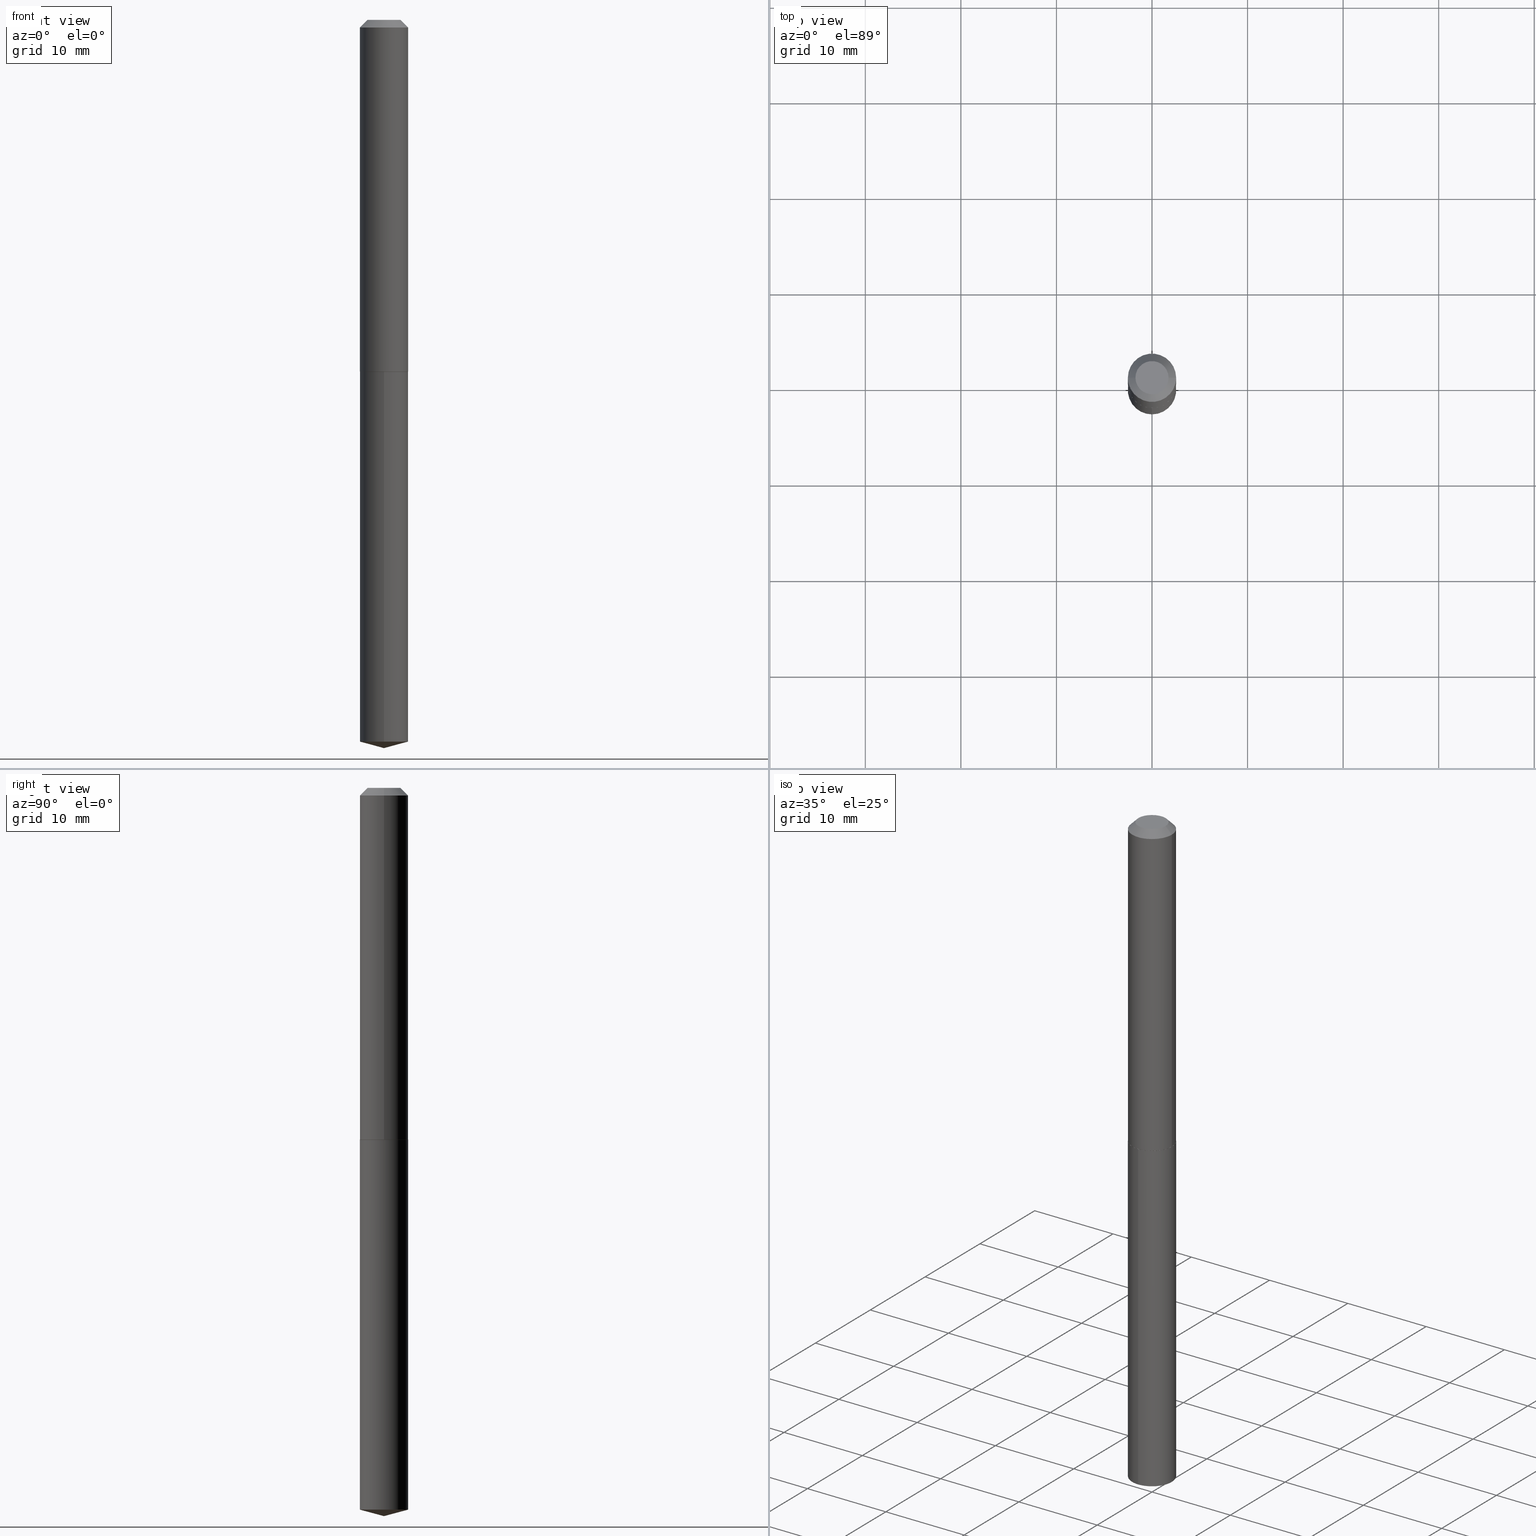
[diagram: canonical four-view strip — front | top / right | iso, engineering-drawing reading convention]
A machine part, canonical four-view strip (front | top / right | iso — engineering-drawing reading convention). The complete STEP part file that produces these views, byte-faithful:
ISO-10303-21;
HEADER;
FILE_DESCRIPTION (( 'STEP AP203' ),
    '1' );
FILE_NAME ('53008.STEP',
    '2024-04-22T18:51:53',
    ( '' ),
    ( '' ),
    'SwSTEP 2.0',
    'SolidWorks 2023',
    '' );
FILE_SCHEMA (( 'CONFIG_CONTROL_DESIGN' ));
ENDSEC;

DATA;
#1 = ORIENTED_EDGE ( 'NONE', *, *, #56, .T. ) ;
#2 = VECTOR ( 'NONE', #383, 39.37007874015748143 ) ;
#3 = PERSON_AND_ORGANIZATION ( #318, #333 ) ;
#4 = ORIENTED_EDGE ( 'NONE', *, *, #56, .F. ) ;
#5 =( NAMED_UNIT ( * ) SI_UNIT ( $, .STERADIAN. ) SOLID_ANGLE_UNIT ( ) );
#6 = VERTEX_POINT ( 'NONE', #172 ) ;
#7 = CARTESIAN_POINT ( 'NONE',  ( 0.000000000000000000, 0.000000000000000000, 0.000000000000000000 ) ) ;
#8 = ORIENTED_EDGE ( 'NONE', *, *, #20, .F. ) ;
#9 = CIRCLE ( 'NONE', #22, 0.06825000000000000511 ) ;
#10 = PERSON_AND_ORGANIZATION_ROLE ( 'design_owner' ) ;
#11 = ORIENTED_EDGE ( 'NONE', *, *, #222, .T. ) ;
#12 = DIRECTION ( 'NONE',  ( 1.000000000000000000, -6.982962677686266711E-15, 0.000000000000000000 ) ) ;
#13 = CARTESIAN_POINT ( 'NONE',  ( 7.252523040957394308E-29, -1.040811562187627569E-14, -2.973339055353103610 ) ) ;
#14 = DATE_AND_TIME ( #342, #339 ) ;
#15 = AXIS2_PLACEMENT_3D ( 'NONE', #315, #138, #380 ) ;
#16 = CARTESIAN_POINT ( 'NONE',  ( -0.09950000000000017164, -4.350420697232997080E-15, -1.448500000000000343 ) ) ;
#17 = CC_DESIGN_APPROVAL ( #66, ( #288 ) ) ;
#18 = CARTESIAN_POINT ( 'NONE',  ( 2.994835545909338206E-48, -4.275831445896990567E-34, -1.224646799147357958E-19 ) ) ;
#19 = DIRECTION ( 'NONE',  ( -2.433211120432753705E-29, 3.509035042504704003E-15, 1.000000000000000000 ) ) ;
#20 = EDGE_CURVE ( 'NONE', #152, #95, #140, .T. ) ;
#21 = DIRECTION ( 'NONE',  ( -2.445468806185136597E-29, 3.491481338843145583E-15, 1.000000000000000000 ) ) ;
#22 = AXIS2_PLACEMENT_3D ( 'NONE', #71, #193, #131 ) ;
#23 = DIRECTION ( 'NONE',  ( -1.000000000000000000, 6.982962677686266711E-15, 0.000000000000000000 ) ) ;
#24 = DIRECTION ( 'NONE',  ( 1.000000000000000000, -6.982962677686266711E-15, 4.876176775795936353E-29 ) ) ;
#25 = ADVANCED_FACE ( 'NONE', ( #253 ), #200, .T. ) ;
#26 = FACE_OUTER_BOUND ( 'NONE', #270, .T. ) ;
#27 = AXIS2_PLACEMENT_3D ( 'NONE', #75, #350, #12 ) ;
#28 = EDGE_CURVE ( 'NONE', #331, #152, #344, .T. ) ;
#29 = CC_DESIGN_SECURITY_CLASSIFICATION ( #314, ( #373 ) ) ;
#30 = CARTESIAN_POINT ( 'NONE',  ( 3.543484300162263808E-29, -5.059156459983719291E-15, -1.449000000000000288 ) ) ;
#31 = CARTESIAN_POINT ( 'NONE',  ( 7.642090019328598283E-31, -1.091087918388489651E-16, -0.03125000000000019429 ) ) ;
#32 = ORIENTED_EDGE ( 'NONE', *, *, #85, .T. ) ;
#33 = AXIS2_PLACEMENT_3D ( 'NONE', #13, #42, #377 ) ;
#34 = DIRECTION ( 'NONE',  ( 1.000000000000000000, -6.982962677686268288E-15, 0.000000000000000000 ) ) ;
#35 = EDGE_LOOP ( 'NONE', ( #278, #265, #217, #129 ) ) ;
#36 =( NAMED_UNIT ( * ) PLANE_ANGLE_UNIT ( ) SI_UNIT ( $, .RADIAN. ) );
#37 = EDGE_LOOP ( 'NONE', ( #212, #308, #337, #62 ) ) ;
#38 = ORIENTED_EDGE ( 'NONE', *, *, #50, .T. ) ;
#39 = CONICAL_SURFACE ( 'NONE', #250, 146.9311341562559505, 1.308996938995748760 ) ;
#40 = APPLICATION_CONTEXT ( 'configuration controlled 3d designs of mechanical parts and assemblies' ) ;
#41 = CARTESIAN_POINT ( 'NONE',  ( -0.09950000000000000511, -1.876269733495272342E-15, -0.03125000000000019429 ) ) ;
#42 = DIRECTION ( 'NONE',  ( -2.433211120432753705E-29, 3.509035042504704003E-15, 1.000000000000000000 ) ) ;
#43 = PERSON_AND_ORGANIZATION ( #318, #333 ) ;
#44 = CARTESIAN_POINT ( 'NONE',  ( 7.069900220813351214E-16, 0.09949999999999496747, -1.449000000000000510 ) ) ;
#45 = APPLICATION_CONTEXT ( 'configuration controlled 3d designs of mechanical parts and assemblies' ) ;
#46 = CIRCLE ( 'NONE', #285, 0.09900000000000022671 ) ;
#47 = DIRECTION ( 'NONE',  ( -0.7071067811865837660, 7.493145998870485111E-15, 0.7071067811865112684 ) ) ;
#48 = PERSON_AND_ORGANIZATION_ROLE ( 'creator' ) ;
#49 = DIRECTION ( 'NONE',  ( -2.445468806185136877E-29, 3.491481338843145188E-15, 1.000000000000000000 ) ) ;
#50 = EDGE_CURVE ( 'NONE', #183, #272, #354, .T. ) ;
#51 = FACE_OUTER_BOUND ( 'NONE', #334, .T. ) ;
#52 = FACE_OUTER_BOUND ( 'NONE', #35, .T. ) ;
#53 = AXIS2_PLACEMENT_3D ( 'NONE', #357, #385, #202 ) ;
#54 = DIRECTION ( 'NONE',  ( -6.982962677686266711E-15, -1.000000000000000000, 2.745575873029409572E-15 ) ) ;
#55 = CARTESIAN_POINT ( 'NONE',  ( -6.948047864297481652E-16, -0.09950000000000505662, -1.449000000000000066 ) ) ;
#56 = EDGE_CURVE ( 'NONE', #122, #89, #266, .T. ) ;
#57 = FACE_OUTER_BOUND ( 'NONE', #119, .T. ) ;
#58 = VECTOR ( 'NONE', #249, 39.37007874015748143 ) ;
#59 = PERSON_AND_ORGANIZATION ( #318, #333 ) ;
#60 = APPLICATION_PROTOCOL_DEFINITION ( 'international standard', 'config_control_design', 1994, #45 ) ;
#61 = EDGE_LOOP ( 'NONE', ( #302, #216, #359, #91 ) ) ;
#62 = ORIENTED_EDGE ( 'NONE', *, *, #375, .F. ) ;
#63 = DIRECTION ( 'NONE',  ( -2.445468806185136597E-29, 3.491481338843145583E-15, 1.000000000000000000 ) ) ;
#64 = VERTEX_POINT ( 'NONE', #283 ) ;
#65 = ORIENTED_EDGE ( 'NONE', *, *, #220, .T. ) ;
#66 = APPROVAL ( #88, 'UNSPECIFIED' ) ;
#67 = ORIENTED_EDGE ( 'NONE', *, *, #366, .T. ) ;
#68 = CONICAL_SURFACE ( 'NONE', #147, 0.09950000000000000511, 0.7853981633974452814 ) ;
#69 = VERTEX_POINT ( 'NONE', #228 ) ;
#70 = PERSON_AND_ORGANIZATION ( #318, #333 ) ;
#71 = CARTESIAN_POINT ( 'NONE',  ( 2.994835545909338206E-48, -4.275831445896990567E-34, -1.224646799147357958E-19 ) ) ;
#72 = SHAPE_DEFINITION_REPRESENTATION ( #121, #103 ) ;
#73 = PLANE ( 'NONE',  #15 ) ;
#74 = PERSON_AND_ORGANIZATION ( #318, #333 ) ;
#75 = CARTESIAN_POINT ( 'NONE',  ( 3.542261565759171006E-29, -5.057410719314297787E-15, -1.448500000000000343 ) ) ;
#76 = CARTESIAN_POINT ( 'NONE',  ( 7.335467627399330870E-29, -1.047623449430291696E-14, -3.000000000000000444 ) ) ;
#77 = DIRECTION ( 'NONE',  ( 6.982962677686265922E-15, 1.000000000000000000, -3.509035042504704003E-15 ) ) ;
#78 = CLOSED_SHELL ( 'NONE', ( #343, #378, #92, #273, #319, #271, #299, #109 ) ) ;
#79 = LINE ( 'NONE', #82, #135 ) ;
#80 = AXIS2_PLACEMENT_3D ( 'NONE', #18, #348, #142 ) ;
#81 = PRODUCT_RELATED_PRODUCT_CATEGORY ( 'detail', '', ( #374 ) ) ;
#82 = CARTESIAN_POINT ( 'NONE',  ( 0.09950000000000017164, -5.752215505744083029E-15, -1.448500000000000343 ) ) ;
#83 = DIRECTION ( 'NONE',  ( -2.433211120432753705E-29, 3.509035042504704003E-15, 1.000000000000000000 ) ) ;
#84 = DIRECTION ( 'NONE',  ( 1.000000000000000000, -6.982962677686266711E-15, 0.000000000000000000 ) ) ;
#85 = EDGE_CURVE ( 'NONE', #305, #6, #178, .T. ) ;
#86 = VECTOR ( 'NONE', #322, 39.37007874015748143 ) ;
#87 = CC_DESIGN_PERSON_AND_ORGANIZATION_ASSIGNMENT ( #59, #181, ( #288 ) ) ;
#88 = APPROVAL_STATUS ( 'not_yet_approved' ) ;
#89 = VERTEX_POINT ( 'NONE', #226 ) ;
#90 = CARTESIAN_POINT ( 'NONE',  ( 3.542261565759171006E-29, -5.057410719314297787E-15, -1.448500000000000343 ) ) ;
#91 = ORIENTED_EDGE ( 'NONE', *, *, #220, .F. ) ;
#92 = ADVANCED_FACE ( 'NONE', ( #133 ), #186, .T. ) ;
#93 = ORIENTED_EDGE ( 'NONE', *, *, #205, .F. ) ;
#94 = EDGE_CURVE ( 'NONE', #89, #122, #355, .T. ) ;
#95 = VERTEX_POINT ( 'NONE', #41 ) ;
#96 = ORIENTED_EDGE ( 'NONE', *, *, #113, .F. ) ;
#97 = CARTESIAN_POINT ( 'NONE',  ( 0.09950000000000000511, -7.917283426171163128E-16, -0.03125000000000019429 ) ) ;
#98 = CC_DESIGN_PERSON_AND_ORGANIZATION_ASSIGNMENT ( #252, #369, ( #314 ) ) ;
#99 = EDGE_LOOP ( 'NONE', ( #336, #38 ) ) ;
#100 = APPROVAL_ROLE ( '' ) ;
#101 = DIRECTION ( 'NONE',  ( -2.433211120432753705E-29, 3.509035042504704003E-15, 1.000000000000000000 ) ) ;
#102 = ORIENTED_EDGE ( 'NONE', *, *, #94, .F. ) ;
#103 = ADVANCED_BREP_SHAPE_REPRESENTATION ( '53008', ( #145, #269, #164 ), #251 ) ;
#104 = CIRCLE ( 'NONE', #244, 0.09950000000000017164 ) ;
#105 = CC_DESIGN_PERSON_AND_ORGANIZATION_ASSIGNMENT ( #192, #48, ( #373 ) ) ;
#106 = DIRECTION ( 'NONE',  ( -6.982962677686266711E-15, -1.000000000000000000, 2.745575873029409967E-15 ) ) ;
#107 = DIRECTION ( 'NONE',  ( 6.863315791527694259E-15, 0.9659258262890696445, 0.2588190451025158545 ) ) ;
#108 = CYLINDRICAL_SURFACE ( 'NONE', #261, 0.09950000000000001898 ) ;
#109 = ADVANCED_FACE ( 'NONE', ( #221 ), #73, .F. ) ;
#110 = CARTESIAN_POINT ( 'NONE',  ( 0.06825000000000000511, -6.299786654825117791E-16, -1.224646799108672044E-19 ) ) ;
#111 = AXIS2_PLACEMENT_3D ( 'NONE', #195, #166, #189 ) ;
#112 = CARTESIAN_POINT ( 'NONE',  ( -6.948047864297482638E-16, -0.09950000000000508438, -1.449000000000000066 ) ) ;
#113 = EDGE_CURVE ( 'NONE', #6, #305, #9, .T. ) ;
#114 = CARTESIAN_POINT ( 'NONE',  ( 3.542261565759171006E-29, -5.057410719314297787E-15, -1.448500000000000343 ) ) ;
#115 = DIRECTION ( 'NONE',  ( 1.000000000000000000, -6.982962677686266711E-15, 0.000000000000000000 ) ) ;
#116 = VECTOR ( 'NONE', #49, 39.37007874015748143 ) ;
#117 = ORIENTED_EDGE ( 'NONE', *, *, #50, .F. ) ;
#118 = AXIS2_PLACEMENT_3D ( 'NONE', #90, #187, #84 ) ;
#119 = EDGE_LOOP ( 'NONE', ( #8, #11, #367, #328 ) ) ;
#120 =( CONVERSION_BASED_UNIT ( 'INCH', #241 ) LENGTH_UNIT ( ) NAMED_UNIT ( #329 ) );
#121 = PRODUCT_DEFINITION_SHAPE ( 'NONE', 'NONE',  #288 ) ;
#122 = VERTEX_POINT ( 'NONE', #257 ) ;
#123 =( LENGTH_UNIT ( ) NAMED_UNIT ( * ) SI_UNIT ( $, .METRE. ) );
#124 = ORIENTED_EDGE ( 'NONE', *, *, #113, .T. ) ;
#125 = AXIS2_PLACEMENT_3D ( 'NONE', #215, #151, #236 ) ;
#126 = LOCAL_TIME ( 14, 51, 53.00000000000000000, #277 ) ;
#127 = COORDINATED_UNIVERSAL_TIME_OFFSET ( 5, 0, .BEHIND. ) ;
#128 = DESIGN_CONTEXT ( 'detailed design', #45, 'design' ) ;
#129 = ORIENTED_EDGE ( 'NONE', *, *, #292, .F. ) ;
#130 = DATE_TIME_ROLE ( 'classification_date' ) ;
#131 = DIRECTION ( 'NONE',  ( 1.000000000000000000, -6.982962677686268288E-15, 4.876180166811199600E-29 ) ) ;
#132 = COORDINATED_UNIVERSAL_TIME_OFFSET ( 5, 0, .BEHIND. ) ;
#133 = FACE_OUTER_BOUND ( 'NONE', #61, .T. ) ;
#134 = AXIS2_PLACEMENT_3D ( 'NONE', #169, #101, #191 ) ;
#135 = VECTOR ( 'NONE', #262, 39.37007874015748143 ) ;
#136 = LOCAL_TIME ( 14, 51, 53.00000000000000000, #225 ) ;
#137 = SECURITY_CLASSIFICATION_LEVEL ( 'unclassified' ) ;
#138 = DIRECTION ( 'NONE',  ( 2.438088387897960049E-29, -3.491481338843145188E-15, -1.000000000000000000 ) ) ;
#139 = APPROVAL_DATE_TIME ( #194, #180 ) ;
#140 = LINE ( 'NONE', #338, #116 ) ;
#141 = EDGE_CURVE ( 'NONE', #331, #208, #227, .T. ) ;
#142 = DIRECTION ( 'NONE',  ( 1.000000000000000000, -6.982962677686268288E-15, 4.876180166811199600E-29 ) ) ;
#143 = PLANE ( 'NONE',  #364 ) ;
#144 = CARTESIAN_POINT ( 'NONE',  ( 7.299633361298261115E-29, -1.052710512751411398E-14, -3.000000000000000444 ) ) ;
#145 = MANIFOLD_SOLID_BREP ( 'Body-Move/Copy2[1]', #370 ) ;
#146 = CYLINDRICAL_SURFACE ( 'NONE', #290, 0.09950000000000008837 ) ;
#147 = AXIS2_PLACEMENT_3D ( 'NONE', #174, #286, #23 ) ;
#148 = DIRECTION ( 'NONE',  ( -6.982962677686265133E-15, -1.000000000000000000, 3.510303681827617951E-15 ) ) ;
#149 = CC_DESIGN_APPROVAL ( #293, ( #314 ) ) ;
#150 = CARTESIAN_POINT ( 'NONE',  ( 7.069900220813727895E-16, 0.09949999999999495359, -1.449000000000000510 ) ) ;
#151 = DIRECTION ( 'NONE',  ( -2.445468806185136597E-29, 3.491481338843145583E-15, 1.000000000000000000 ) ) ;
#152 = VERTEX_POINT ( 'NONE', #310 ) ;
#153 = DIRECTION ( 'NONE',  ( -2.445468806185136597E-29, 3.491481338843145583E-15, 1.000000000000000000 ) ) ;
#154 = EDGE_LOOP ( 'NONE', ( #297, #1, #240, #117 ) ) ;
#155 = AXIS2_PLACEMENT_3D ( 'NONE', #387, #233, #324 ) ;
#156 = APPROVAL_PERSON_ORGANIZATION ( #3, #66, #182 ) ;
#157 = DIRECTION ( 'NONE',  ( -2.445468806185136877E-29, 3.491481338843145188E-15, 1.000000000000000000 ) ) ;
#158 = ORIENTED_EDGE ( 'NONE', *, *, #347, .T. ) ;
#159 = CYLINDRICAL_SURFACE ( 'NONE', #358, 0.09950000000000008837 ) ;
#160 = EDGE_LOOP ( 'NONE', ( #162, #158, #4 ) ) ;
#161 = DIRECTION ( 'NONE',  ( 1.000000000000000000, 0.000000000000000000, 0.000000000000000000 ) ) ;
#162 = ORIENTED_EDGE ( 'NONE', *, *, #243, .F. ) ;
#163 = AXIS2_PLACEMENT_3D ( 'NONE', #31, #153, #115 ) ;
#164 = AXIS2_PLACEMENT_3D ( 'NONE', #335, #304, #161 ) ;
#165 = EDGE_CURVE ( 'NONE', #305, #64, #309, .T. ) ;
#166 = DIRECTION ( 'NONE',  ( -2.445468806185136597E-29, 3.491481338843145583E-15, 1.000000000000000000 ) ) ;
#167 = DIRECTION ( 'NONE',  ( 0.7071067811865453523, -7.319954787623248157E-15, -0.7071067811865496822 ) ) ;
#168 = DATE_AND_TIME ( #346, #136 ) ;
#169 = CARTESIAN_POINT ( 'NONE',  ( -8.847831865491084997E-28, 1.276493161144735505E-13, 36.37007874015748143 ) ) ;
#170 = CARTESIAN_POINT ( 'NONE',  ( 3.543484300162263808E-29, -5.059156459983719291E-15, -1.449000000000000288 ) ) ;
#171 = EDGE_CURVE ( 'NONE', #122, #183, #279, .T. ) ;
#172 = CARTESIAN_POINT ( 'NONE',  ( -0.06825000000000000511, 5.311415986715111962E-16, -1.224646799182593088E-19 ) ) ;
#173 = DIRECTION ( 'NONE',  ( -2.445468806185136597E-29, 3.491481338843145583E-15, 1.000000000000000000 ) ) ;
#174 = CARTESIAN_POINT ( 'NONE',  ( 7.642090019328598283E-31, -1.091087918388489651E-16, -0.03125000000000019429 ) ) ;
#175 = CARTESIAN_POINT ( 'NONE',  ( 0.09900000000000022671, -5.750469765074661525E-15, -1.449000000000000288 ) ) ;
#176 = FACE_OUTER_BOUND ( 'NONE', #154, .T. ) ;
#177 = ADVANCED_FACE ( 'NONE', ( #281 ), #39, .T. ) ;
#178 = CIRCLE ( 'NONE', #80, 0.06825000000000000511 ) ;
#179 = CARTESIAN_POINT ( 'NONE',  ( 3.542261565759171006E-29, -5.057410719314297787E-15, -1.448500000000000343 ) ) ;
#180 = APPROVAL ( #340, 'UNSPECIFIED' ) ;
#181 = PERSON_AND_ORGANIZATION_ROLE ( 'creator' ) ;
#182 = APPROVAL_ROLE ( '' ) ;
#183 = VERTEX_POINT ( 'NONE', #150 ) ;
#184 = CALENDAR_DATE ( 2024, 22, 4 ) ;
#185 = ORIENTED_EDGE ( 'NONE', *, *, #345, .F. ) ;
#186 = CONICAL_SURFACE ( 'NONE', #27, 0.09950000000000017164, 0.7853981633974995713 ) ;
#187 = DIRECTION ( 'NONE',  ( -2.445468806185136597E-29, 3.491481338843145583E-15, 1.000000000000000000 ) ) ;
#188 = EDGE_LOOP ( 'NONE', ( #124, #32 ) ) ;
#189 = DIRECTION ( 'NONE',  ( 1.000000000000000000, -6.982962677686268288E-15, 0.000000000000000000 ) ) ;
#190 = CIRCLE ( 'NONE', #118, 0.09950000000000017164 ) ;
#191 = DIRECTION ( 'NONE',  ( -6.982962677686265133E-15, -1.000000000000000000, 3.510303681827617951E-15 ) ) ;
#192 = PERSON_AND_ORGANIZATION ( #318, #333 ) ;
#193 = DIRECTION ( 'NONE',  ( -2.445468806185136597E-29, 3.491481338843145583E-15, 1.000000000000000000 ) ) ;
#194 = DATE_AND_TIME ( #223, #126 ) ;
#195 = CARTESIAN_POINT ( 'NONE',  ( 3.543484300162263808E-29, -5.059156459983719291E-15, -1.449000000000000288 ) ) ;
#196 = CARTESIAN_POINT ( 'NONE',  ( 7.252523040957394308E-29, -1.040811562187627569E-14, -2.973339055353103610 ) ) ;
#197 = DIRECTION ( 'NONE',  ( -2.433211120432753705E-29, 3.509035042504704003E-15, 1.000000000000000000 ) ) ;
#198 = EDGE_CURVE ( 'NONE', #272, #183, #231, .T. ) ;
#199 = CARTESIAN_POINT ( 'NONE',  ( -0.09900000000000022671, -4.353069924407107492E-15, -1.449000000000000288 ) ) ;
#200 = CONICAL_SURFACE ( 'NONE', #134, 146.9311341562559505, 1.308996938995748760 ) ;
#201 = LOCAL_TIME ( 14, 51, 53.00000000000000000, #127 ) ;
#202 = DIRECTION ( 'NONE',  ( 1.000000000000000000, -6.982962677686265922E-15, 4.876176775795935793E-29 ) ) ;
#203 = DIRECTION ( 'NONE',  ( -2.445468806185136597E-29, 3.491481338843145583E-15, 1.000000000000000000 ) ) ;
#204 = DIRECTION ( 'NONE',  ( -6.982962677686266711E-15, -1.000000000000000000, 2.745575873029409572E-15 ) ) ;
#205 = EDGE_CURVE ( 'NONE', #89, #272, #232, .T. ) ;
#206 = DIRECTION ( 'NONE',  ( 1.000000000000000000, -6.982962677686266711E-15, 4.876176775795936353E-29 ) ) ;
#207 = DIRECTION ( 'NONE',  ( -6.745023994389839133E-15, -0.9659258262890676461, 0.2588190451025225713 ) ) ;
#208 = VERTEX_POINT ( 'NONE', #175 ) ;
#209 = APPLICATION_PROTOCOL_DEFINITION ( 'international standard', 'config_control_design', 1994, #40 ) ;
#210 = ORIENTED_EDGE ( 'NONE', *, *, #243, .T. ) ;
#211 = LINE ( 'NONE', #300, #326 ) ;
#212 = ORIENTED_EDGE ( 'NONE', *, *, #388, .T. ) ;
#213 = AXIS2_PLACEMENT_3D ( 'NONE', #179, #173, #291 ) ;
#214 = APPROVAL_PERSON_ORGANIZATION ( #43, #293, #280 ) ;
#215 = CARTESIAN_POINT ( 'NONE',  ( 7.642090019328598283E-31, -1.091087918388489651E-16, -0.03125000000000019429 ) ) ;
#216 = ORIENTED_EDGE ( 'NONE', *, *, #28, .T. ) ;
#217 = ORIENTED_EDGE ( 'NONE', *, *, #352, .T. ) ;
#218 = ORIENTED_EDGE ( 'NONE', *, *, #171, .T. ) ;
#219 = VECTOR ( 'NONE', #47, 39.37007874015748143 ) ;
#220 = EDGE_CURVE ( 'NONE', #208, #69, #79, .T. ) ;
#221 = FACE_OUTER_BOUND ( 'NONE', #188, .T. ) ;
#222 = EDGE_CURVE ( 'NONE', #152, #69, #104, .T. ) ;
#223 = CALENDAR_DATE ( 2024, 22, 4 ) ;
#224 = CARTESIAN_POINT ( 'NONE',  ( -8.847831865491084997E-28, 1.276493161144735505E-13, 36.37007874015748143 ) ) ;
#225 = COORDINATED_UNIVERSAL_TIME_OFFSET ( 5, 0, .BEHIND. ) ;
#226 = CARTESIAN_POINT ( 'NONE',  ( -6.948047864297114831E-16, -0.09950000000001051059, -2.973339055353103166 ) ) ;
#227 = CIRCLE ( 'NONE', #111, 0.09900000000000022671 ) ;
#228 = CARTESIAN_POINT ( 'NONE',  ( 0.09950000000000017164, -5.752215505744083029E-15, -1.448500000000000343 ) ) ;
#229 = CYLINDRICAL_SURFACE ( 'NONE', #371, 0.09950000000000001898 ) ;
#230 = DIRECTION ( 'NONE',  ( -2.445468806185136597E-29, 3.491481338843145583E-15, 1.000000000000000000 ) ) ;
#231 = CIRCLE ( 'NONE', #313, 0.09950000000000000511 ) ;
#232 = LINE ( 'NONE', #112, #2 ) ;
#233 = DIRECTION ( 'NONE',  ( 2.445468806185136597E-29, -3.491481338843145583E-15, -1.000000000000000000 ) ) ;
#234 = DIRECTION ( 'NONE',  ( 1.000000000000000000, -6.982962677686266711E-15, 0.000000000000000000 ) ) ;
#235 = CONICAL_SURFACE ( 'NONE', #213, 0.09950000000000017164, 0.7853981633974995713 ) ;
#236 = DIRECTION ( 'NONE',  ( 1.000000000000000000, -6.982962677686266711E-15, 0.000000000000000000 ) ) ;
#237 = ORIENTED_EDGE ( 'NONE', *, *, #94, .T. ) ;
#238 = CC_DESIGN_DATE_AND_TIME_ASSIGNMENT ( #168, #130, ( #314 ) ) ;
#239 = MECHANICAL_CONTEXT ( 'NONE', #40, 'mechanical' ) ;
#240 = ORIENTED_EDGE ( 'NONE', *, *, #205, .T. ) ;
#241 = LENGTH_MEASURE_WITH_UNIT ( LENGTH_MEASURE( 0.02539999999999999897 ), #123 );
#242 = EDGE_LOOP ( 'NONE', ( #361, #96, #372, #67 ) ) ;
#243 = EDGE_CURVE ( 'NONE', #245, #122, #287, .T. ) ;
#244 = AXIS2_PLACEMENT_3D ( 'NONE', #114, #21, #234 ) ;
#245 = VERTEX_POINT ( 'NONE', #144 ) ;
#246 = CC_DESIGN_PERSON_AND_ORGANIZATION_ASSIGNMENT ( #74, #306, ( #373 ) ) ;
#247 = ORIENTED_EDGE ( 'NONE', *, *, #198, .F. ) ;
#248 = EDGE_LOOP ( 'NONE', ( #282, #210, #102 ) ) ;
#249 = DIRECTION ( 'NONE',  ( -2.433211120432753425E-29, 3.509035042504704003E-15, 1.000000000000000000 ) ) ;
#250 = AXIS2_PLACEMENT_3D ( 'NONE', #224, #311, #148 ) ;
#251 =( GEOMETRIC_REPRESENTATION_CONTEXT ( 3 ) GLOBAL_UNCERTAINTY_ASSIGNED_CONTEXT ( ( #301 ) ) GLOBAL_UNIT_ASSIGNED_CONTEXT ( ( #120, #36, #5 ) ) REPRESENTATION_CONTEXT ( 'NONE', 'WORKASPACE' ) );
#252 = PERSON_AND_ORGANIZATION ( #318, #333 ) ;
#253 = FACE_OUTER_BOUND ( 'NONE', #248, .T. ) ;
#254 = APPROVAL_STATUS ( 'not_yet_approved' ) ;
#255 = DIRECTION ( 'NONE',  ( -2.433211120432753705E-29, 3.509035042504704003E-15, 1.000000000000000000 ) ) ;
#256 = ADVANCED_FACE ( 'NONE', ( #176 ), #108, .T. ) ;
#257 = CARTESIAN_POINT ( 'NONE',  ( 7.069900220813727895E-16, 0.09949999999998966616, -2.973339055353104055 ) ) ;
#258 = CARTESIAN_POINT ( 'NONE',  ( 3.543484300162263808E-29, -5.059156459983719291E-15, -1.449000000000000288 ) ) ;
#259 = CARTESIAN_POINT ( 'NONE',  ( -0.09950000000000000511, 5.856959945909346619E-16, -0.03125000000000019429 ) ) ;
#260 = FACE_OUTER_BOUND ( 'NONE', #242, .T. ) ;
#261 = AXIS2_PLACEMENT_3D ( 'NONE', #289, #263, #54 ) ;
#262 = DIRECTION ( 'NONE',  ( 0.7071067811865837660, -2.468850131082636503E-15, 0.7071067811865112684 ) ) ;
#263 = DIRECTION ( 'NONE',  ( -2.433211120432753705E-29, 3.509035042504704003E-15, 1.000000000000000000 ) ) ;
#264 = DATE_TIME_ROLE ( 'creation_date' ) ;
#265 = ORIENTED_EDGE ( 'NONE', *, *, #165, .T. ) ;
#266 = CIRCLE ( 'NONE', #33, 0.09950000000000004674 ) ;
#267 = LOCAL_TIME ( 14, 51, 53.00000000000000000, #296 ) ;
#268 = ORIENTED_EDGE ( 'NONE', *, *, #222, .F. ) ;
#269 = MANIFOLD_SOLID_BREP ( 'Body-Move/Copy2[2]', #78 ) ;
#270 = EDGE_LOOP ( 'NONE', ( #185, #365 ) ) ;
#271 = ADVANCED_FACE ( 'NONE', ( #57 ), #146, .T. ) ;
#272 = VERTEX_POINT ( 'NONE', #55 ) ;
#273 = ADVANCED_FACE ( 'NONE', ( #26 ), #320, .F. ) ;
#274 = PERSON_AND_ORGANIZATION ( #318, #333 ) ;
#275 = VECTOR ( 'NONE', #107, 39.37007874015748854 ) ;
#276 = APPROVAL_PERSON_ORGANIZATION ( #70, #180, #100 ) ;
#277 = COORDINATED_UNIVERSAL_TIME_OFFSET ( 5, 0, .BEHIND. ) ;
#278 = ORIENTED_EDGE ( 'NONE', *, *, #85, .F. ) ;
#279 = LINE ( 'NONE', #44, #58 ) ;
#280 = APPROVAL_ROLE ( '' ) ;
#281 = FACE_OUTER_BOUND ( 'NONE', #160, .T. ) ;
#282 = ORIENTED_EDGE ( 'NONE', *, *, #347, .F. ) ;
#283 = CARTESIAN_POINT ( 'NONE',  ( 0.09950000000000000511, -8.039135782686324687E-16, -0.03125000000000019429 ) ) ;
#284 = FACE_OUTER_BOUND ( 'NONE', #99, .T. ) ;
#285 = AXIS2_PLACEMENT_3D ( 'NONE', #384, #230, #34 ) ;
#286 = DIRECTION ( 'NONE',  ( 2.445468806185136597E-29, -3.491481338843145583E-15, -1.000000000000000000 ) ) ;
#287 = LINE ( 'NONE', #76, #275 ) ;
#288 = PRODUCT_DEFINITION ( 'UNKNOWN', '', #373, #128 ) ;
#289 = CARTESIAN_POINT ( 'NONE',  ( 3.543484300162263808E-29, -5.059156459983719291E-15, -1.449000000000000288 ) ) ;
#290 = AXIS2_PLACEMENT_3D ( 'NONE', #323, #203, #24 ) ;
#291 = DIRECTION ( 'NONE',  ( 1.000000000000000000, -6.982962677686266711E-15, 0.000000000000000000 ) ) ;
#292 = EDGE_CURVE ( 'NONE', #6, #95, #317, .T. ) ;
#293 = APPROVAL ( #254, 'UNSPECIFIED' ) ;
#294 = CALENDAR_DATE ( 2024, 22, 4 ) ;
#295 = EDGE_LOOP ( 'NONE', ( #237, #218, #247, #93 ) ) ;
#296 = COORDINATED_UNIVERSAL_TIME_OFFSET ( 5, 0, .BEHIND. ) ;
#297 = ORIENTED_EDGE ( 'NONE', *, *, #171, .F. ) ;
#298 = DATE_AND_TIME ( #184, #201 ) ;
#299 = ADVANCED_FACE ( 'NONE', ( #260 ), #332, .T. ) ;
#300 = CARTESIAN_POINT ( 'NONE',  ( 7.299633361298262236E-29, -1.052710512751411398E-14, -3.000000000000000444 ) ) ;
#301 = UNCERTAINTY_MEASURE_WITH_UNIT (LENGTH_MEASURE( 1.000000000000000082E-05 ), #120, 'distance_accuracy_value', 'NONE');
#302 = ORIENTED_EDGE ( 'NONE', *, *, #345, .T. ) ;
#303 = CC_DESIGN_PERSON_AND_ORGANIZATION_ASSIGNMENT ( #274, #10, ( #374 ) ) ;
#304 = DIRECTION ( 'NONE',  ( 0.000000000000000000, 0.000000000000000000, 1.000000000000000000 ) ) ;
#305 = VERTEX_POINT ( 'NONE', #110 ) ;
#306 = PERSON_AND_ORGANIZATION_ROLE ( 'design_supplier' ) ;
#307 = AXIS2_PLACEMENT_3D ( 'NONE', #170, #255, #106 ) ;
#308 = ORIENTED_EDGE ( 'NONE', *, *, #20, .T. ) ;
#309 = LINE ( 'NONE', #97, #321 ) ;
#310 = CARTESIAN_POINT ( 'NONE',  ( -0.09950000000000017164, -4.350420697232997080E-15, -1.448500000000000343 ) ) ;
#311 = DIRECTION ( 'NONE',  ( -2.433211120432753705E-29, 3.509035042504704003E-15, 1.000000000000000000 ) ) ;
#312 = ADVANCED_FACE ( 'NONE', ( #356 ), #229, .T. ) ;
#313 = AXIS2_PLACEMENT_3D ( 'NONE', #30, #197, #353 ) ;
#314 = SECURITY_CLASSIFICATION ( '', '', #137 ) ;
#315 = CARTESIAN_POINT ( 'NONE',  ( 1.497417772954669103E-48, -2.137915722948495283E-34, -6.123233995736789792E-20 ) ) ;
#316 = CC_DESIGN_DATE_AND_TIME_ASSIGNMENT ( #390, #264, ( #288 ) ) ;
#317 = LINE ( 'NONE', #259, #86 ) ;
#318 = PERSON ( 'UNSPECIFIED', 'UNSPECIFIED', 'UNSPECIFIED', ('UNSPECIFIED'), ('UNSPECIFIED'), ('UNSPECIFIED') ) ;
#319 = ADVANCED_FACE ( 'NONE', ( #51 ), #235, .T. ) ;
#320 = PLANE ( 'NONE',  #53 ) ;
#321 = VECTOR ( 'NONE', #167, 39.37007874015748143 ) ;
#322 = DIRECTION ( 'NONE',  ( -0.7071067811865453523, 2.468850131082234184E-15, -0.7071067811865496822 ) ) ;
#323 = CARTESIAN_POINT ( 'NONE',  ( 0.000000000000000000, 0.000000000000000000, 0.000000000000000000 ) ) ;
#324 = DIRECTION ( 'NONE',  ( -1.000000000000000000, 6.982962677686266711E-15, 0.000000000000000000 ) ) ;
#325 = ADVANCED_FACE ( 'NONE', ( #284 ), #143, .F. ) ;
#326 = VECTOR ( 'NONE', #207, 39.37007874015748854 ) ;
#327 = APPROVAL_DATE_TIME ( #298, #66 ) ;
#328 = ORIENTED_EDGE ( 'NONE', *, *, #366, .F. ) ;
#329 = DIMENSIONAL_EXPONENTS ( 1.000000000000000000, 0.000000000000000000, 0.000000000000000000, 0.000000000000000000, 0.000000000000000000, 0.000000000000000000, 0.000000000000000000 ) ;
#330 = CARTESIAN_POINT ( 'NONE',  ( 0.09950000000000008837, -6.948047864297841570E-16, 4.851795891916960794E-30 ) ) ;
#331 = VERTEX_POINT ( 'NONE', #199 ) ;
#332 = CONICAL_SURFACE ( 'NONE', #155, 0.09950000000000000511, 0.7853981633974452814 ) ;
#333 = ORGANIZATION ( 'UNSPECIFIED', 'UNSPECIFIED', '' ) ;
#334 = EDGE_LOOP ( 'NONE', ( #341, #379, #65, #268 ) ) ;
#335 = CARTESIAN_POINT ( 'NONE',  ( 0.000000000000000000, 0.000000000000000000, 0.000000000000000000 ) ) ;
#336 = ORIENTED_EDGE ( 'NONE', *, *, #198, .T. ) ;
#337 = ORIENTED_EDGE ( 'NONE', *, *, #352, .F. ) ;
#338 = CARTESIAN_POINT ( 'NONE',  ( -0.09950000000000008837, 7.069900220813003129E-16, -4.894340414803635936E-30 ) ) ;
#339 = LOCAL_TIME ( 14, 51, 53.00000000000000000, #132 ) ;
#340 = APPROVAL_STATUS ( 'not_yet_approved' ) ;
#341 = ORIENTED_EDGE ( 'NONE', *, *, #28, .F. ) ;
#342 = CALENDAR_DATE ( 2024, 22, 4 ) ;
#343 = ADVANCED_FACE ( 'NONE', ( #52 ), #68, .T. ) ;
#344 = LINE ( 'NONE', #16, #219 ) ;
#345 = EDGE_CURVE ( 'NONE', #208, #331, #46, .T. ) ;
#346 = CALENDAR_DATE ( 2024, 22, 4 ) ;
#347 = EDGE_CURVE ( 'NONE', #245, #89, #211, .T. ) ;
#348 = DIRECTION ( 'NONE',  ( -2.445468806185136597E-29, 3.491481338843145583E-15, 1.000000000000000000 ) ) ;
#349 = CIRCLE ( 'NONE', #163, 0.09950000000000000511 ) ;
#350 = DIRECTION ( 'NONE',  ( -2.445468806185136597E-29, 3.491481338843145583E-15, 1.000000000000000000 ) ) ;
#351 = DIRECTION ( 'NONE',  ( 2.433211120432753425E-29, -3.509035042504704003E-15, -1.000000000000000000 ) ) ;
#352 = EDGE_CURVE ( 'NONE', #64, #95, #363, .T. ) ;
#353 = DIRECTION ( 'NONE',  ( -6.982962677686266711E-15, -1.000000000000000000, 2.745575873029409967E-15 ) ) ;
#354 = CIRCLE ( 'NONE', #307, 0.09950000000000000511 ) ;
#355 = CIRCLE ( 'NONE', #386, 0.09950000000000004674 ) ;
#356 = FACE_OUTER_BOUND ( 'NONE', #295, .T. ) ;
#357 = CARTESIAN_POINT ( 'NONE',  ( 3.543484300162263808E-29, -5.059156459983719291E-15, -1.449000000000000288 ) ) ;
#358 = AXIS2_PLACEMENT_3D ( 'NONE', #7, #63, #206 ) ;
#359 = ORIENTED_EDGE ( 'NONE', *, *, #388, .F. ) ;
#360 = FACE_OUTER_BOUND ( 'NONE', #37, .T. ) ;
#361 = ORIENTED_EDGE ( 'NONE', *, *, #165, .F. ) ;
#362 = LINE ( 'NONE', #330, #381 ) ;
#363 = CIRCLE ( 'NONE', #125, 0.09950000000000000511 ) ;
#364 = AXIS2_PLACEMENT_3D ( 'NONE', #258, #351, #77 ) ;
#365 = ORIENTED_EDGE ( 'NONE', *, *, #141, .F. ) ;
#366 = EDGE_CURVE ( 'NONE', #95, #64, #349, .T. ) ;
#367 = ORIENTED_EDGE ( 'NONE', *, *, #375, .T. ) ;
#368 = DIRECTION ( 'NONE',  ( -6.982962677686265922E-15, -1.000000000000000000, 5.491151746058817567E-15 ) ) ;
#369 = PERSON_AND_ORGANIZATION_ROLE ( 'classification_officer' ) ;
#370 = CLOSED_SHELL ( 'NONE', ( #312, #25, #177, #256, #325 ) ) ;
#371 = AXIS2_PLACEMENT_3D ( 'NONE', #389, #83, #204 ) ;
#372 = ORIENTED_EDGE ( 'NONE', *, *, #292, .T. ) ;
#373 = PRODUCT_DEFINITION_FORMATION_WITH_SPECIFIED_SOURCE ( 'ANY', '', #374, .NOT_KNOWN. ) ;
#374 = PRODUCT ( '53008', '53008', '', ( #239 ) ) ;
#375 = EDGE_CURVE ( 'NONE', #69, #64, #362, .T. ) ;
#376 = APPROVAL_DATE_TIME ( #14, #293 ) ;
#377 = DIRECTION ( 'NONE',  ( -6.982962677686265922E-15, -1.000000000000000000, 5.491151746058817567E-15 ) ) ;
#378 = ADVANCED_FACE ( 'NONE', ( #360 ), #159, .T. ) ;
#379 = ORIENTED_EDGE ( 'NONE', *, *, #141, .T. ) ;
#380 = DIRECTION ( 'NONE',  ( -1.000000000000000000, 6.982962677686265922E-15, -4.876176775795935793E-29 ) ) ;
#381 = VECTOR ( 'NONE', #157, 39.37007874015748143 ) ;
#382 = CC_DESIGN_APPROVAL ( #180, ( #373 ) ) ;
#383 = DIRECTION ( 'NONE',  ( -2.433211120432753425E-29, 3.509035042504704003E-15, 1.000000000000000000 ) ) ;
#384 = CARTESIAN_POINT ( 'NONE',  ( 3.543484300162263808E-29, -5.059156459983719291E-15, -1.449000000000000288 ) ) ;
#385 = DIRECTION ( 'NONE',  ( -2.438088387897960049E-29, 3.491481338843145188E-15, 1.000000000000000000 ) ) ;
#386 = AXIS2_PLACEMENT_3D ( 'NONE', #196, #19, #368 ) ;
#387 = CARTESIAN_POINT ( 'NONE',  ( 7.642090019328598283E-31, -1.091087918388489651E-16, -0.03125000000000019429 ) ) ;
#388 = EDGE_CURVE ( 'NONE', #69, #152, #190, .T. ) ;
#389 = CARTESIAN_POINT ( 'NONE',  ( 3.543484300162263808E-29, -5.059156459983719291E-15, -1.449000000000000288 ) ) ;
#390 = DATE_AND_TIME ( #294, #267 ) ;
ENDSEC;
END-ISO-10303-21;
